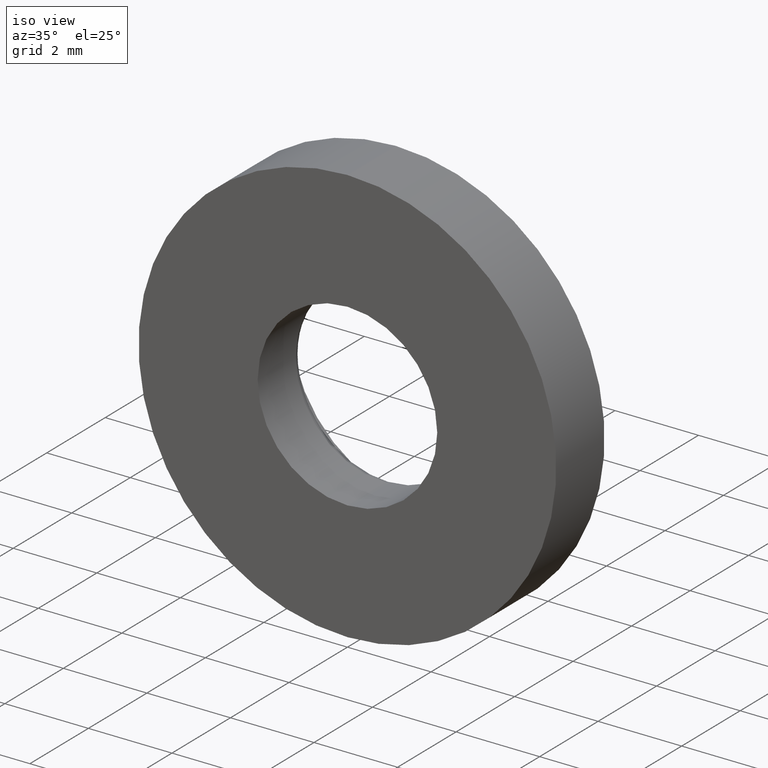
[diagram: clean part render]
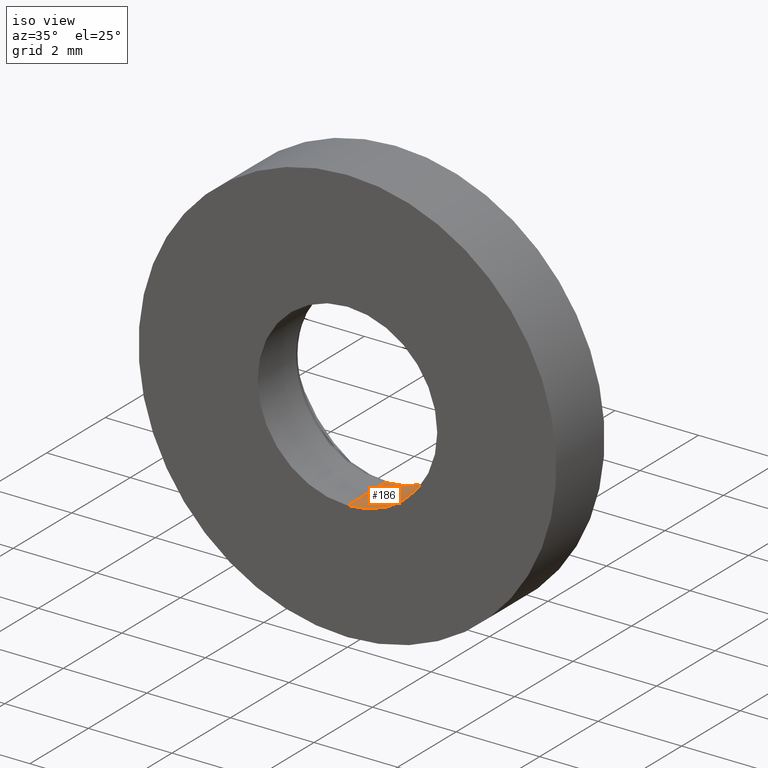
[diagram: same view with one face highlighted and labeled with its STEP entity id]
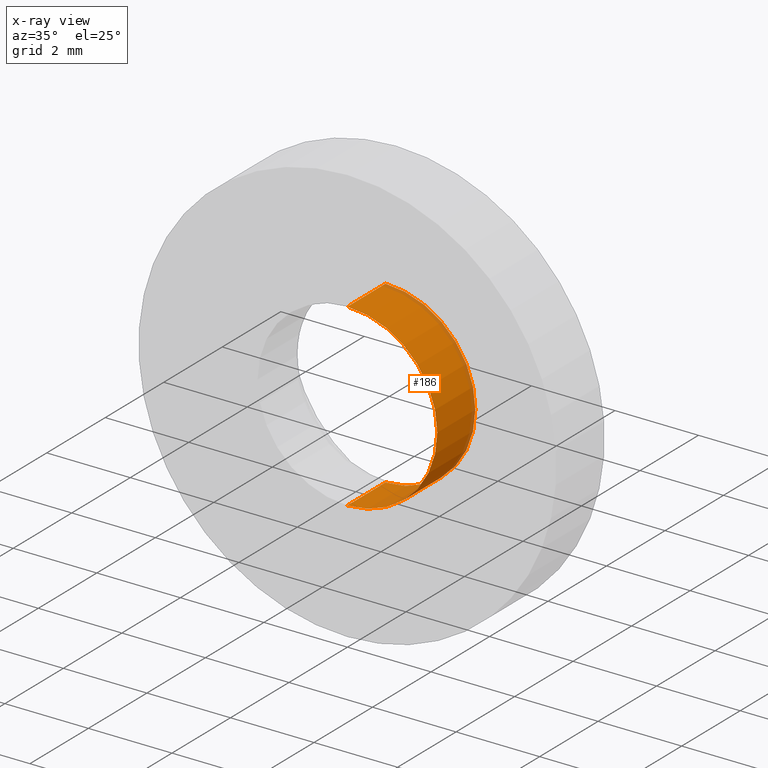
[diagram: x-ray of the same camera — body ghosted, the highlighted face saturated]
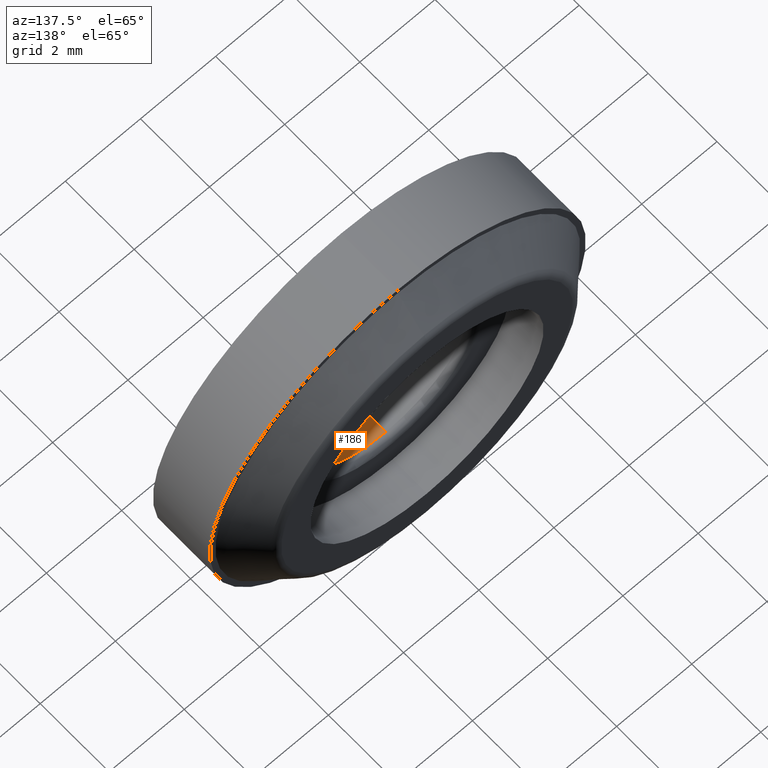
[diagram: same view with one face highlighted and labeled with its STEP entity id]
A machine part, iso view. The second image highlights one B-rep face of the part: STEP entity #186.
The next image is the same camera in x-ray: the body ghosted, the highlighted face saturated — about 8% of this face is hidden behind the body in this view.
A second angle (auxiliary view) of the same face is appended — the face is thin or edge-on in the first view.
In plain terms, the highlighted cylindrical surface (partial cylindrical patch) has radius 2.15 mm, axis along (0, -1, 0).
Its self-contained STEP definition (entity closure, byte-faithful):
#11 = DIRECTION ( 'NONE',  ( 0.0000000000000000000, 0.0000000000000000000, 1.000000000000000000 ) ) ;
#13 = CARTESIAN_POINT ( 'NONE',  ( 0.0000000000000000000, 1.300000000000000000, 0.0000000000000000000 ) ) ;
#18 = AXIS2_PLACEMENT_3D ( 'NONE', #329, #459, #214 ) ;
#23 = CARTESIAN_POINT ( 'NONE',  ( 0.0000000000000000000, 1.300000000000000000, -2.149999999999999900 ) ) ;
#27 = EDGE_CURVE ( 'NONE', #398, #248, #514, .T. ) ;
#29 = CARTESIAN_POINT ( 'NONE',  ( 2.632990618166809200E-016, 1.300000000000000000, 2.149999999999999900 ) ) ;
#50 = DIRECTION ( 'NONE',  ( 0.0000000000000000000, 1.000000000000000000, 0.0000000000000000000 ) ) ;
#52 = ORIENTED_EDGE ( 'NONE', *, *, #419, .T. ) ;
#70 = DIRECTION ( 'NONE',  ( 0.0000000000000000000, -1.000000000000000000, 0.0000000000000000000 ) ) ;
#82 = ORIENTED_EDGE ( 'NONE', *, *, #430, .T. ) ;
#83 = LINE ( 'NONE', #208, #375 ) ;
#90 = VECTOR ( 'NONE', #70, 1000.000000000000000 ) ;
#92 = AXIS2_PLACEMENT_3D ( 'NONE', #405, #271, #381 ) ;
#116 = DIRECTION ( 'NONE',  ( 0.0000000000000000000, -1.000000000000000000, 0.0000000000000000000 ) ) ;
#182 = CARTESIAN_POINT ( 'NONE',  ( 2.632990618166809200E-016, 0.0000000000000000000, 2.149999999999999900 ) ) ;
#186 = ADVANCED_FACE ( 'NONE', ( #392 ), #238, .F. ) ;
#193 = CIRCLE ( 'NONE', #498, 2.149999999999999900 ) ;
#194 = CARTESIAN_POINT ( 'NONE',  ( 2.632990618166809200E-016, 2.500000000000000000, 2.149999999999999900 ) ) ;
#201 = LINE ( 'NONE', #194, #90 ) ;
#208 = CARTESIAN_POINT ( 'NONE',  ( 0.0000000000000000000, 2.500000000000000000, -2.149999999999999900 ) ) ;
#209 = CARTESIAN_POINT ( 'NONE',  ( 0.0000000000000000000, 0.0000000000000000000, -2.149999999999999900 ) ) ;
#214 = DIRECTION ( 'NONE',  ( 0.0000000000000000000, 0.0000000000000000000, -1.000000000000000000 ) ) ;
#238 = CYLINDRICAL_SURFACE ( 'NONE', #18, 2.149999999999999900 ) ;
#248 = VERTEX_POINT ( 'NONE', #209 ) ;
#271 = DIRECTION ( 'NONE',  ( 0.0000000000000000000, 1.000000000000000000, 0.0000000000000000000 ) ) ;
#329 = CARTESIAN_POINT ( 'NONE',  ( 0.0000000000000000000, 2.500000000000000000, 0.0000000000000000000 ) ) ;
#359 = VERTEX_POINT ( 'NONE', #23 ) ;
#362 = VERTEX_POINT ( 'NONE', #29 ) ;
#371 = EDGE_CURVE ( 'NONE', #362, #398, #201, .T. ) ;
#373 = ORIENTED_EDGE ( 'NONE', *, *, #27, .F. ) ;
#375 = VECTOR ( 'NONE', #116, 1000.000000000000000 ) ;
#381 = DIRECTION ( 'NONE',  ( 0.0000000000000000000, 0.0000000000000000000, 1.000000000000000000 ) ) ;
#392 = FACE_OUTER_BOUND ( 'NONE', #509, .T. ) ;
#398 = VERTEX_POINT ( 'NONE', #182 ) ;
#405 = CARTESIAN_POINT ( 'NONE',  ( 0.0000000000000000000, 0.0000000000000000000, 0.0000000000000000000 ) ) ;
#419 = EDGE_CURVE ( 'NONE', #359, #248, #83, .T. ) ;
#430 = EDGE_CURVE ( 'NONE', #362, #359, #193, .T. ) ;
#439 = ORIENTED_EDGE ( 'NONE', *, *, #371, .F. ) ;
#459 = DIRECTION ( 'NONE',  ( 0.0000000000000000000, -1.000000000000000000, 0.0000000000000000000 ) ) ;
#498 = AXIS2_PLACEMENT_3D ( 'NONE', #13, #50, #11 ) ;
#509 = EDGE_LOOP ( 'NONE', ( #439, #82, #52, #373 ) ) ;
#514 = CIRCLE ( 'NONE', #92, 2.149999999999999900 ) ;